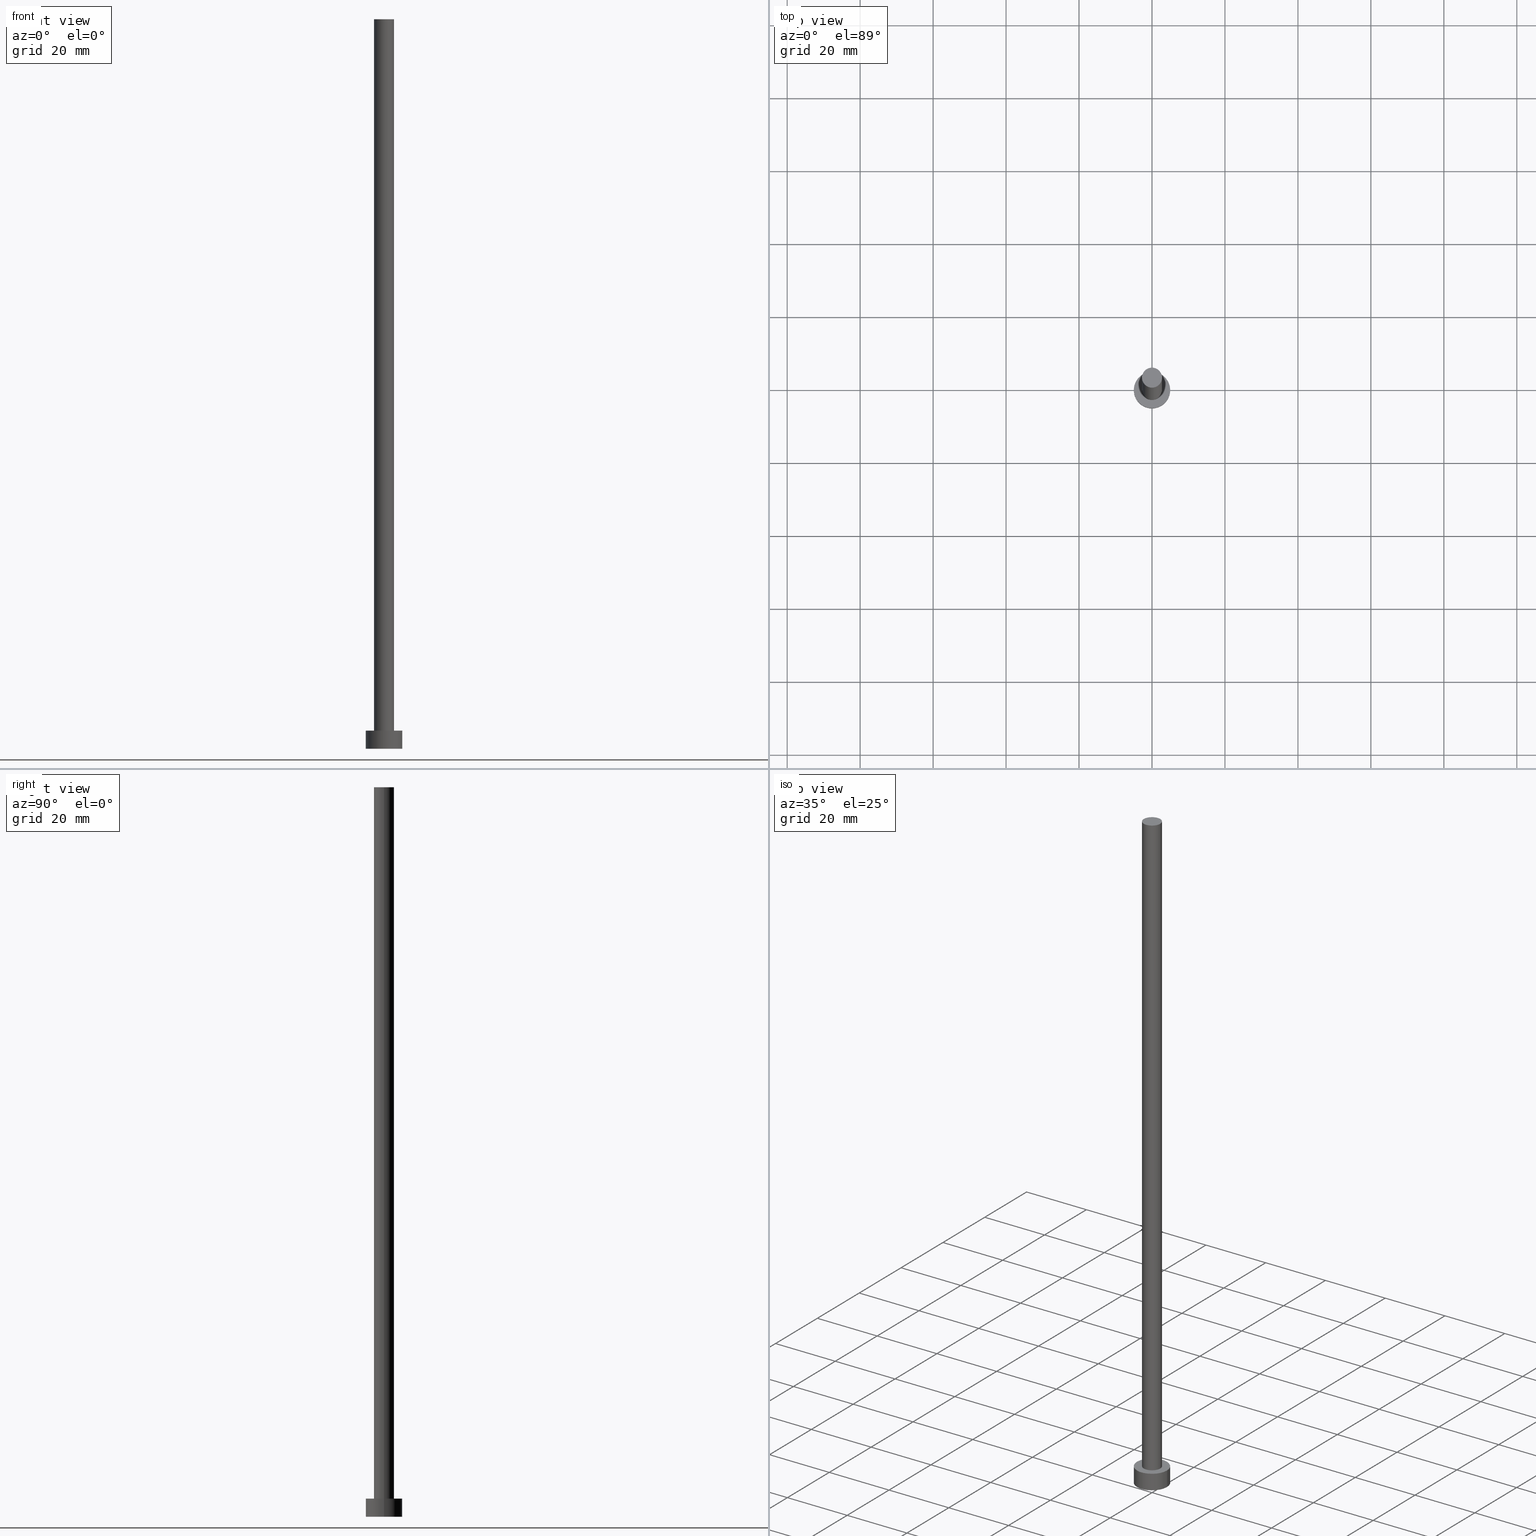
[diagram: canonical four-view strip — front | top / right | iso, engineering-drawing reading convention]
A machine part, canonical four-view strip (front | top / right | iso — engineering-drawing reading convention). The complete STEP part file that produces these views, byte-faithful:
ISO-10303-21;
HEADER;
FILE_DESCRIPTION (( 'STEP AP203' ),
    '1' );
FILE_NAME ('a7e1.STEP',
    '2023-02-13T16:01:39',
    ( '' ),
    ( '' ),
    'SwSTEP 2.0',
    'SolidWorks 2019',
    '' );
FILE_SCHEMA (( 'CONFIG_CONTROL_DESIGN' ));
ENDSEC;

DATA;
#1 = DIRECTION ( 'NONE',  ( 1.000000000000000000, 0.000000000000000000, 0.000000000000000000 ) ) ;
#2 = CARTESIAN_POINT ( 'NONE',  ( -2.750000000000000000, 0.000000000000000000, 200.0000000000000000 ) ) ;
#3 = CC_DESIGN_APPROVAL ( #122, ( #190 ) ) ;
#4 = CALENDAR_DATE ( 2023, 13, 2 ) ;
#5 = APPROVAL_DATE_TIME ( #99, #50 ) ;
#6 = CARTESIAN_POINT ( 'NONE',  ( 0.000000000000000000, 0.000000000000000000, 200.0000000000000000 ) ) ;
#7 = VERTEX_POINT ( 'NONE', #2 ) ;
#8 = CARTESIAN_POINT ( 'NONE',  ( 0.000000000000000000, 0.000000000000000000, 5.000000000000000000 ) ) ;
#9 = MECHANICAL_CONTEXT ( 'NONE', #68, 'mechanical' ) ;
#10 = AXIS2_PLACEMENT_3D ( 'NONE', #183, #231, #54 ) ;
#11 = COORDINATED_UNIVERSAL_TIME_OFFSET ( 1, 0, .AHEAD. ) ;
#12 = EDGE_LOOP ( 'NONE', ( #194, #53 ) ) ;
#13 = APPROVAL_ROLE ( '' ) ;
#14 = ORIENTED_EDGE ( 'NONE', *, *, #206, .F. ) ;
#15 = EDGE_CURVE ( 'NONE', #153, #36, #20, .T. ) ;
#16 = CIRCLE ( 'NONE', #247, 5.000000000000000000 ) ;
#17 = EDGE_LOOP ( 'NONE', ( #28, #111 ) ) ;
#18 = FACE_OUTER_BOUND ( 'NONE', #229, .T. ) ;
#19 = AXIS2_PLACEMENT_3D ( 'NONE', #6, #203, #61 ) ;
#20 = CIRCLE ( 'NONE', #146, 2.750000000000000000 ) ;
#21 = DIRECTION ( 'NONE',  ( -0.000000000000000000, -0.000000000000000000, -1.000000000000000000 ) ) ;
#22 = CC_DESIGN_PERSON_AND_ORGANIZATION_ASSIGNMENT ( #238, #120, ( #89 ) ) ;
#23 = DATE_TIME_ROLE ( 'classification_date' ) ;
#24 = FACE_OUTER_BOUND ( 'NONE', #179, .T. ) ;
#25 = CC_DESIGN_PERSON_AND_ORGANIZATION_ASSIGNMENT ( #92, #43, ( #34 ) ) ;
#26 = LINE ( 'NONE', #96, #74 ) ;
#27 = FACE_OUTER_BOUND ( 'NONE', #12, .T. ) ;
#28 = ORIENTED_EDGE ( 'NONE', *, *, #98, .F. ) ;
#29 = AXIS2_PLACEMENT_3D ( 'NONE', #255, #160, #1 ) ;
#30 = DIRECTION ( 'NONE',  ( 0.000000000000000000, 0.000000000000000000, 1.000000000000000000 ) ) ;
#31 = ADVANCED_FACE ( 'NONE', ( #119 ), #201, .T. ) ;
#32 = CARTESIAN_POINT ( 'NONE',  ( 5.000000000000000000, 6.123233995736766282E-16, 5.000000000000000000 ) ) ;
#33 = ORIENTED_EDGE ( 'NONE', *, *, #209, .F. ) ;
#34 = PRODUCT_DEFINITION_FORMATION_WITH_SPECIFIED_SOURCE ( 'LIBOVOLN�', '', #100, .NOT_KNOWN. ) ;
#35 = ADVANCED_FACE ( 'NONE', ( #24 ), #94, .T. ) ;
#36 = VERTEX_POINT ( 'NONE', #141 ) ;
#37 = VERTEX_POINT ( 'NONE', #232 ) ;
#38 = PRODUCT_RELATED_PRODUCT_CATEGORY ( 'detail', '', ( #100 ) ) ;
#39 = LOCAL_TIME ( 17, 1, 39.00000000000000000, #90 ) ;
#40 = CARTESIAN_POINT ( 'NONE',  ( 0.000000000000000000, 0.000000000000000000, 5.000000000000000000 ) ) ;
#41 = DATE_AND_TIME ( #200, #59 ) ;
#42 = APPROVAL ( #114, 'NEUR�EN�' ) ;
#43 = PERSON_AND_ORGANIZATION_ROLE ( 'design_supplier' ) ;
#44 = FACE_OUTER_BOUND ( 'NONE', #110, .T. ) ;
#45 = CARTESIAN_POINT ( 'NONE',  ( 0.000000000000000000, 0.000000000000000000, 200.0000000000000000 ) ) ;
#46 = PLANE ( 'NONE',  #95 ) ;
#47 = EDGE_CURVE ( 'NONE', #173, #37, #70, .T. ) ;
#48 = CARTESIAN_POINT ( 'NONE',  ( 5.000000000000000000, 6.123233995736766282E-16, 0.000000000000000000 ) ) ;
#49 = ORIENTED_EDGE ( 'NONE', *, *, #72, .F. ) ;
#50 = APPROVAL ( #169, 'NEUR�EN�' ) ;
#51 = CALENDAR_DATE ( 2023, 13, 2 ) ;
#52 = DIRECTION ( 'NONE',  ( 1.000000000000000000, 0.000000000000000000, 0.000000000000000000 ) ) ;
#53 = ORIENTED_EDGE ( 'NONE', *, *, #47, .F. ) ;
#54 = DIRECTION ( 'NONE',  ( 1.000000000000000000, 0.000000000000000000, 0.000000000000000000 ) ) ;
#55 = DIRECTION ( 'NONE',  ( -1.000000000000000000, 0.000000000000000000, 0.000000000000000000 ) ) ;
#56 = CC_DESIGN_DATE_AND_TIME_ASSIGNMENT ( #205, #23, ( #89 ) ) ;
#57 = CARTESIAN_POINT ( 'NONE',  ( 2.750000000000000000, 3.367778697655221012E-16, 200.0000000000000000 ) ) ;
#58 = DIRECTION ( 'NONE',  ( 1.000000000000000000, 0.000000000000000000, 0.000000000000000000 ) ) ;
#59 = LOCAL_TIME ( 17, 1, 39.00000000000000000, #118 ) ;
#60 = SHAPE_DEFINITION_REPRESENTATION ( #228, #133 ) ;
#61 = DIRECTION ( 'NONE',  ( -1.000000000000000000, 0.000000000000000000, 0.000000000000000000 ) ) ;
#62 = CARTESIAN_POINT ( 'NONE',  ( 0.000000000000000000, 0.000000000000000000, 0.000000000000000000 ) ) ;
#63 = CC_DESIGN_DATE_AND_TIME_ASSIGNMENT ( #41, #93, ( #190 ) ) ;
#64 = DIRECTION ( 'NONE',  ( 0.000000000000000000, 0.000000000000000000, 1.000000000000000000 ) ) ;
#65 = PLANE ( 'NONE',  #67 ) ;
#66 = ORIENTED_EDGE ( 'NONE', *, *, #15, .T. ) ;
#67 = AXIS2_PLACEMENT_3D ( 'NONE', #128, #30, #78 ) ;
#68 = APPLICATION_CONTEXT ( 'configuration controlled 3d designs of mechanical parts and assemblies' ) ;
#69 = CC_DESIGN_PERSON_AND_ORGANIZATION_ASSIGNMENT ( #233, #117, ( #34 ) ) ;
#70 = CIRCLE ( 'NONE', #10, 5.000000000000000000 ) ;
#71 = DIRECTION ( 'NONE',  ( 0.000000000000000000, 0.000000000000000000, 1.000000000000000000 ) ) ;
#72 = EDGE_CURVE ( 'NONE', #7, #36, #134, .T. ) ;
#73 = ORIENTED_EDGE ( 'NONE', *, *, #161, .T. ) ;
#74 = VECTOR ( 'NONE', #187, 1000.000000000000000 ) ;
#75 = CALENDAR_DATE ( 2023, 13, 2 ) ;
#76 = DIRECTION ( 'NONE',  ( 1.000000000000000000, 0.000000000000000000, 0.000000000000000000 ) ) ;
#77 = APPLICATION_CONTEXT ( 'configuration controlled 3d designs of mechanical parts and assemblies' ) ;
#78 = DIRECTION ( 'NONE',  ( 1.000000000000000000, 0.000000000000000000, -0.000000000000000000 ) ) ;
#79 =( NAMED_UNIT ( * ) PLANE_ANGLE_UNIT ( ) SI_UNIT ( $, .RADIAN. ) );
#80 = ADVANCED_FACE ( 'NONE', ( #18 ), #91, .T. ) ;
#81 = DIRECTION ( 'NONE',  ( 1.000000000000000000, 0.000000000000000000, -0.000000000000000000 ) ) ;
#82 = CARTESIAN_POINT ( 'NONE',  ( -5.000000000000000000, 0.000000000000000000, 5.000000000000000000 ) ) ;
#83 = ORIENTED_EDGE ( 'NONE', *, *, #242, .T. ) ;
#84 = PERSON_AND_ORGANIZATION ( #155, #217 ) ;
#85 = ORIENTED_EDGE ( 'NONE', *, *, #127, .T. ) ;
#86 = EDGE_LOOP ( 'NONE', ( #150, #177, #171, #124 ) ) ;
#87 = CC_DESIGN_SECURITY_CLASSIFICATION ( #89, ( #34 ) ) ;
#88 = EDGE_LOOP ( 'NONE', ( #210, #104, #66, #49 ) ) ;
#89 = SECURITY_CLASSIFICATION ( '', '', #186 ) ;
#90 = COORDINATED_UNIVERSAL_TIME_OFFSET ( 1, 0, .AHEAD. ) ;
#91 = CYLINDRICAL_SURFACE ( 'NONE', #106, 5.000000000000000000 ) ;
#92 = PERSON_AND_ORGANIZATION ( #155, #217 ) ;
#93 = DATE_TIME_ROLE ( 'creation_date' ) ;
#94 = CYLINDRICAL_SURFACE ( 'NONE', #248, 2.750000000000000000 ) ;
#95 = AXIS2_PLACEMENT_3D ( 'NONE', #62, #123, #102 ) ;
#96 = CARTESIAN_POINT ( 'NONE',  ( 2.750000000000000000, 3.367778697655221012E-16, 200.0000000000000000 ) ) ;
#97 = DIRECTION ( 'NONE',  ( 1.000000000000000000, 0.000000000000000000, 0.000000000000000000 ) ) ;
#98 = EDGE_CURVE ( 'NONE', #36, #153, #139, .T. ) ;
#99 = DATE_AND_TIME ( #4, #167 ) ;
#100 = PRODUCT ( 'a7e1', 'a7e1', '', ( #9 ) ) ;
#101 = CLOSED_SHELL ( 'NONE', ( #198, #31, #80, #109, #195, #35, #143 ) ) ;
#102 = DIRECTION ( 'NONE',  ( 1.000000000000000000, 0.000000000000000000, -0.000000000000000000 ) ) ;
#103 = DIRECTION ( 'NONE',  ( 0.000000000000000000, 0.000000000000000000, 1.000000000000000000 ) ) ;
#104 = ORIENTED_EDGE ( 'NONE', *, *, #209, .T. ) ;
#105 = VERTEX_POINT ( 'NONE', #57 ) ;
#106 = AXIS2_PLACEMENT_3D ( 'NONE', #235, #21, #162 ) ;
#107 = LOCAL_TIME ( 17, 1, 39.00000000000000000, #11 ) ;
#108 = MANIFOLD_SOLID_BREP ( 'P�idat vysunut�m3', #101 ) ;
#109 = ADVANCED_FACE ( 'NONE', ( #136, #44 ), #65, .T. ) ;
#110 = EDGE_LOOP ( 'NONE', ( #85, #83 ) ) ;
#111 = ORIENTED_EDGE ( 'NONE', *, *, #15, .F. ) ;
#112 = EDGE_CURVE ( 'NONE', #105, #7, #174, .T. ) ;
#113 = DIRECTION ( 'NONE',  ( -0.000000000000000000, -0.000000000000000000, -1.000000000000000000 ) ) ;
#114 = APPROVAL_STATUS ( 'not_yet_approved' ) ;
#115 = DIRECTION ( 'NONE',  ( -0.000000000000000000, -0.000000000000000000, -1.000000000000000000 ) ) ;
#116 = AXIS2_PLACEMENT_3D ( 'NONE', #45, #64, #76 ) ;
#117 = PERSON_AND_ORGANIZATION_ROLE ( 'creator' ) ;
#118 = COORDINATED_UNIVERSAL_TIME_OFFSET ( 1, 0, .AHEAD. ) ;
#119 = FACE_OUTER_BOUND ( 'NONE', #86, .T. ) ;
#120 = PERSON_AND_ORGANIZATION_ROLE ( 'classification_officer' ) ;
#121 = CARTESIAN_POINT ( 'NONE',  ( 0.000000000000000000, 0.000000000000000000, 200.0000000000000000 ) ) ;
#122 = APPROVAL ( #211, 'NEUR�EN�' ) ;
#123 = DIRECTION ( 'NONE',  ( 0.000000000000000000, 0.000000000000000000, 1.000000000000000000 ) ) ;
#124 = ORIENTED_EDGE ( 'NONE', *, *, #152, .F. ) ;
#125 = CARTESIAN_POINT ( 'NONE',  ( 0.000000000000000000, 0.000000000000000000, 200.0000000000000000 ) ) ;
#126 = AXIS2_PLACEMENT_3D ( 'NONE', #168, #218, #243 ) ;
#127 = EDGE_CURVE ( 'NONE', #131, #221, #237, .T. ) ;
#128 = CARTESIAN_POINT ( 'NONE',  ( 0.000000000000000000, 0.000000000000000000, 5.000000000000000000 ) ) ;
#129 = PERSON_AND_ORGANIZATION_ROLE ( 'design_owner' ) ;
#130 = CC_DESIGN_PERSON_AND_ORGANIZATION_ASSIGNMENT ( #84, #129, ( #100 ) ) ;
#131 = VERTEX_POINT ( 'NONE', #245 ) ;
#132 = AXIS2_PLACEMENT_3D ( 'NONE', #40, #113, #55 ) ;
#133 = ADVANCED_BREP_SHAPE_REPRESENTATION ( 'a7e1', ( #108, #180 ), #157 ) ;
#134 = LINE ( 'NONE', #212, #224 ) ;
#135 = APPROVAL_DATE_TIME ( #159, #42 ) ;
#136 = FACE_BOUND ( 'NONE', #17, .T. ) ;
#137 = AXIS2_PLACEMENT_3D ( 'NONE', #8, #103, #97 ) ;
#138 = PERSON_AND_ORGANIZATION ( #155, #217 ) ;
#139 = CIRCLE ( 'NONE', #29, 2.750000000000000000 ) ;
#140 = EDGE_CURVE ( 'NONE', #37, #173, #16, .T. ) ;
#141 = CARTESIAN_POINT ( 'NONE',  ( -2.750000000000000000, 0.000000000000000000, 5.000000000000000000 ) ) ;
#142 = DIRECTION ( 'NONE',  ( -0.000000000000000000, -0.000000000000000000, -1.000000000000000000 ) ) ;
#143 = ADVANCED_FACE ( 'NONE', ( #223 ), #239, .T. ) ;
#144 = APPROVAL_PERSON_ORGANIZATION ( #226, #122, #13 ) ;
#145 = DIRECTION ( 'NONE',  ( 0.000000000000000000, 0.000000000000000000, 1.000000000000000000 ) ) ;
#146 = AXIS2_PLACEMENT_3D ( 'NONE', #234, #213, #58 ) ;
#147 = DIRECTION ( 'NONE',  ( 1.000000000000000000, 0.000000000000000000, 0.000000000000000000 ) ) ;
#148 = DIRECTION ( 'NONE',  ( -0.000000000000000000, -0.000000000000000000, -1.000000000000000000 ) ) ;
#149 = DIRECTION ( 'NONE',  ( 0.000000000000000000, 0.000000000000000000, 1.000000000000000000 ) ) ;
#150 = ORIENTED_EDGE ( 'NONE', *, *, #242, .F. ) ;
#151 = UNCERTAINTY_MEASURE_WITH_UNIT (LENGTH_MEASURE( 1.000000000000000082E-05 ), #188, 'distance_accuracy_value', 'NONE');
#152 = EDGE_CURVE ( 'NONE', #131, #37, #170, .T. ) ;
#153 = VERTEX_POINT ( 'NONE', #246 ) ;
#154 = CC_DESIGN_APPROVAL ( #42, ( #34 ) ) ;
#155 = PERSON ( 'NEUR�EN�', 'NEUR�EN�', 'NEUR�EN�', ('NEUR�EN�'), ('NEUR�EN�'), ('NEUR�EN�') ) ;
#156 = EDGE_LOOP ( 'NONE', ( #73, #192 ) ) ;
#157 =( GEOMETRIC_REPRESENTATION_CONTEXT ( 3 ) GLOBAL_UNCERTAINTY_ASSIGNED_CONTEXT ( ( #151 ) ) GLOBAL_UNIT_ASSIGNED_CONTEXT ( ( #188, #79, #220 ) ) REPRESENTATION_CONTEXT ( 'NONE', 'WORKASPACE' ) );
#158 = APPROVAL_DATE_TIME ( #252, #122 ) ;
#159 = DATE_AND_TIME ( #75, #39 ) ;
#160 = DIRECTION ( 'NONE',  ( 0.000000000000000000, 0.000000000000000000, 1.000000000000000000 ) ) ;
#161 = EDGE_CURVE ( 'NONE', #7, #105, #214, .T. ) ;
#162 = DIRECTION ( 'NONE',  ( -1.000000000000000000, 0.000000000000000000, 0.000000000000000000 ) ) ;
#163 = APPROVAL_PERSON_ORGANIZATION ( #176, #42, #230 ) ;
#164 = CARTESIAN_POINT ( 'NONE',  ( 0.000000000000000000, 0.000000000000000000, 0.000000000000000000 ) ) ;
#165 = CC_DESIGN_PERSON_AND_ORGANIZATION_ASSIGNMENT ( #138, #215, ( #190 ) ) ;
#166 = CALENDAR_DATE ( 2023, 13, 2 ) ;
#167 = LOCAL_TIME ( 17, 1, 39.00000000000000000, #240 ) ;
#168 = CARTESIAN_POINT ( 'NONE',  ( 0.000000000000000000, 0.000000000000000000, 5.000000000000000000 ) ) ;
#169 = APPROVAL_STATUS ( 'not_yet_approved' ) ;
#170 = LINE ( 'NONE', #82, #254 ) ;
#171 = ORIENTED_EDGE ( 'NONE', *, *, #47, .T. ) ;
#172 = ORIENTED_EDGE ( 'NONE', *, *, #72, .T. ) ;
#173 = VERTEX_POINT ( 'NONE', #48 ) ;
#174 = CIRCLE ( 'NONE', #182, 2.750000000000000000 ) ;
#175 = ORIENTED_EDGE ( 'NONE', *, *, #152, .T. ) ;
#176 = PERSON_AND_ORGANIZATION ( #155, #217 ) ;
#177 = ORIENTED_EDGE ( 'NONE', *, *, #206, .T. ) ;
#178 = LOCAL_TIME ( 17, 1, 39.00000000000000000, #244 ) ;
#179 = EDGE_LOOP ( 'NONE', ( #33, #251, #172, #225 ) ) ;
#180 = AXIS2_PLACEMENT_3D ( 'NONE', #249, #71, #52 ) ;
#181 = APPROVAL_ROLE ( '' ) ;
#182 = AXIS2_PLACEMENT_3D ( 'NONE', #125, #145, #147 ) ;
#183 = CARTESIAN_POINT ( 'NONE',  ( 0.000000000000000000, 0.000000000000000000, 0.000000000000000000 ) ) ;
#184 = CARTESIAN_POINT ( 'NONE',  ( 5.000000000000000000, 6.123233995736766282E-16, 5.000000000000000000 ) ) ;
#185 = APPLICATION_PROTOCOL_DEFINITION ( 'international standard', 'config_control_design', 1994, #68 ) ;
#186 = SECURITY_CLASSIFICATION_LEVEL ( 'unclassified' ) ;
#187 = DIRECTION ( 'NONE',  ( -0.000000000000000000, -0.000000000000000000, -1.000000000000000000 ) ) ;
#188 =( LENGTH_UNIT ( ) NAMED_UNIT ( * ) SI_UNIT ( .MILLI., .METRE. ) );
#189 = APPLICATION_PROTOCOL_DEFINITION ( 'international standard', 'config_control_design', 1994, #77 ) ;
#190 = PRODUCT_DEFINITION ( 'NEZN�M�', '', #34, #227 ) ;
#191 = CIRCLE ( 'NONE', #137, 5.000000000000000000 ) ;
#192 = ORIENTED_EDGE ( 'NONE', *, *, #112, .T. ) ;
#193 = ORIENTED_EDGE ( 'NONE', *, *, #127, .F. ) ;
#194 = ORIENTED_EDGE ( 'NONE', *, *, #140, .F. ) ;
#195 = ADVANCED_FACE ( 'NONE', ( #27 ), #46, .F. ) ;
#196 = CARTESIAN_POINT ( 'NONE',  ( 0.000000000000000000, 0.000000000000000000, 200.0000000000000000 ) ) ;
#197 = DIRECTION ( 'NONE',  ( -0.000000000000000000, -0.000000000000000000, -1.000000000000000000 ) ) ;
#198 = ADVANCED_FACE ( 'NONE', ( #222 ), #207, .T. ) ;
#199 = CC_DESIGN_APPROVAL ( #50, ( #89 ) ) ;
#200 = CALENDAR_DATE ( 2023, 13, 2 ) ;
#201 = CYLINDRICAL_SURFACE ( 'NONE', #132, 5.000000000000000000 ) ;
#202 = VECTOR ( 'NONE', #148, 1000.000000000000000 ) ;
#203 = DIRECTION ( 'NONE',  ( -0.000000000000000000, -0.000000000000000000, -1.000000000000000000 ) ) ;
#204 = DIRECTION ( 'NONE',  ( 1.000000000000000000, 0.000000000000000000, 0.000000000000000000 ) ) ;
#205 = DATE_AND_TIME ( #166, #178 ) ;
#206 = EDGE_CURVE ( 'NONE', #221, #173, #208, .T. ) ;
#207 = CYLINDRICAL_SURFACE ( 'NONE', #19, 2.750000000000000000 ) ;
#208 = LINE ( 'NONE', #32, #202 ) ;
#209 = EDGE_CURVE ( 'NONE', #105, #153, #26, .T. ) ;
#210 = ORIENTED_EDGE ( 'NONE', *, *, #112, .F. ) ;
#211 = APPROVAL_STATUS ( 'not_yet_approved' ) ;
#212 = CARTESIAN_POINT ( 'NONE',  ( -2.750000000000000000, 0.000000000000000000, 200.0000000000000000 ) ) ;
#213 = DIRECTION ( 'NONE',  ( 0.000000000000000000, 0.000000000000000000, 1.000000000000000000 ) ) ;
#214 = CIRCLE ( 'NONE', #116, 2.750000000000000000 ) ;
#215 = PERSON_AND_ORGANIZATION_ROLE ( 'creator' ) ;
#216 = DIRECTION ( 'NONE',  ( 0.000000000000000000, 0.000000000000000000, 1.000000000000000000 ) ) ;
#217 = ORGANIZATION ( 'NEUR�EN�', 'NEUR�EN�', '' ) ;
#218 = DIRECTION ( 'NONE',  ( 0.000000000000000000, 0.000000000000000000, 1.000000000000000000 ) ) ;
#219 = PERSON_AND_ORGANIZATION ( #155, #217 ) ;
#220 =( NAMED_UNIT ( * ) SI_UNIT ( $, .STERADIAN. ) SOLID_ANGLE_UNIT ( ) );
#221 = VERTEX_POINT ( 'NONE', #184 ) ;
#222 = FACE_OUTER_BOUND ( 'NONE', #88, .T. ) ;
#223 = FACE_OUTER_BOUND ( 'NONE', #156, .T. ) ;
#224 = VECTOR ( 'NONE', #115, 1000.000000000000000 ) ;
#225 = ORIENTED_EDGE ( 'NONE', *, *, #98, .T. ) ;
#226 = PERSON_AND_ORGANIZATION ( #155, #217 ) ;
#227 = DESIGN_CONTEXT ( 'detailed design', #77, 'design' ) ;
#228 = PRODUCT_DEFINITION_SHAPE ( 'NONE', 'NONE',  #190 ) ;
#229 = EDGE_LOOP ( 'NONE', ( #14, #193, #175, #250 ) ) ;
#230 = APPROVAL_ROLE ( '' ) ;
#231 = DIRECTION ( 'NONE',  ( 0.000000000000000000, 0.000000000000000000, 1.000000000000000000 ) ) ;
#232 = CARTESIAN_POINT ( 'NONE',  ( -5.000000000000000000, 0.000000000000000000, 0.000000000000000000 ) ) ;
#233 = PERSON_AND_ORGANIZATION ( #155, #217 ) ;
#234 = CARTESIAN_POINT ( 'NONE',  ( 0.000000000000000000, 0.000000000000000000, 5.000000000000000000 ) ) ;
#235 = CARTESIAN_POINT ( 'NONE',  ( 0.000000000000000000, 0.000000000000000000, 5.000000000000000000 ) ) ;
#236 = AXIS2_PLACEMENT_3D ( 'NONE', #121, #149, #81 ) ;
#237 = CIRCLE ( 'NONE', #126, 5.000000000000000000 ) ;
#238 = PERSON_AND_ORGANIZATION ( #155, #217 ) ;
#239 = PLANE ( 'NONE',  #236 ) ;
#240 = COORDINATED_UNIVERSAL_TIME_OFFSET ( 1, 0, .AHEAD. ) ;
#241 = APPROVAL_PERSON_ORGANIZATION ( #219, #50, #181 ) ;
#242 = EDGE_CURVE ( 'NONE', #221, #131, #191, .T. ) ;
#243 = DIRECTION ( 'NONE',  ( 1.000000000000000000, 0.000000000000000000, 0.000000000000000000 ) ) ;
#244 = COORDINATED_UNIVERSAL_TIME_OFFSET ( 1, 0, .AHEAD. ) ;
#245 = CARTESIAN_POINT ( 'NONE',  ( -5.000000000000000000, 0.000000000000000000, 5.000000000000000000 ) ) ;
#246 = CARTESIAN_POINT ( 'NONE',  ( 2.750000000000000000, 3.367778697655221012E-16, 5.000000000000000000 ) ) ;
#247 = AXIS2_PLACEMENT_3D ( 'NONE', #164, #216, #204 ) ;
#248 = AXIS2_PLACEMENT_3D ( 'NONE', #196, #197, #253 ) ;
#249 = CARTESIAN_POINT ( 'NONE',  ( 0.000000000000000000, 0.000000000000000000, 0.000000000000000000 ) ) ;
#250 = ORIENTED_EDGE ( 'NONE', *, *, #140, .T. ) ;
#251 = ORIENTED_EDGE ( 'NONE', *, *, #161, .F. ) ;
#252 = DATE_AND_TIME ( #51, #107 ) ;
#253 = DIRECTION ( 'NONE',  ( -1.000000000000000000, 0.000000000000000000, 0.000000000000000000 ) ) ;
#254 = VECTOR ( 'NONE', #142, 1000.000000000000000 ) ;
#255 = CARTESIAN_POINT ( 'NONE',  ( 0.000000000000000000, 0.000000000000000000, 5.000000000000000000 ) ) ;
ENDSEC;
END-ISO-10303-21;
